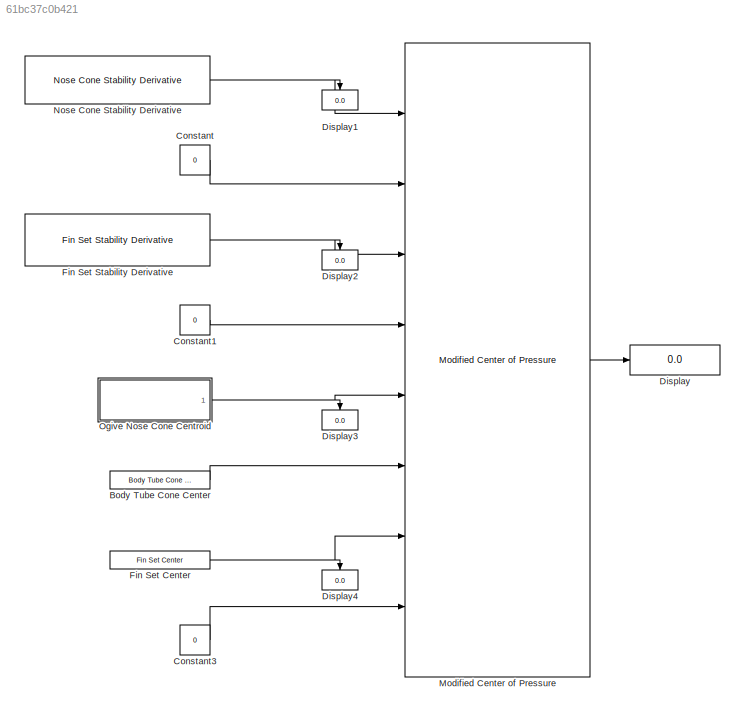
MODEL slx_61bc37c0b421
KIND model
CONFIG InitFcn = fin_center_distance=1.7;\nfin_root_chord=1.6;\nfin_tip_chord=0.85;\nd_nose_tip_to_fins=11.2;\nfins_count=4;\nheight_fins=1.65;\ndiameter_outer=0.75;\nheight_nose_cone=3.6;\nfin_sweep_length=0.75;\n
BLOCK [Reference] Body Tube Cone Center  REF=rocket_angular_flight_library/Center of Pressure/Body Tube Cone Center
  Ports = [0, 1]
  SourceBlock = rocket_angular_flight_library/Center of Pressure/Body Tube Cone Center
  SourceType = SubSystem
BLOCK [Constant] Constant
  Value = 0
BLOCK [Constant] Constant1
  Value = 0
BLOCK [Constant] Constant3
  Value = 0
BLOCK [Display] Display
  Decimation = 1
  Ports = [1]
BLOCK [Display] Display1
  Decimation = 1
  Ports = [1]
BLOCK [Display] Display2
  Decimation = 1
  Ports = [1]
BLOCK [Display] Display3
  Decimation = 1
  Ports = [1]
BLOCK [Display] Display4
  Decimation = 1
  Ports = [1]
BLOCK [Reference] Fin Set Center  REF=rocket_angular_flight_library/Center of Pressure/Fin Set Center
  Ports = [0, 1]
  SourceBlock = rocket_angular_flight_library/Center of Pressure/Fin Set Center
  SourceType = SubSystem
BLOCK [Reference] Fin Set Stability Derivative  REF=rocket_angular_flight_library/Rocket Stability Derivative/Fin Set Stability Derivative
  Ports = [0, 1]
  SourceBlock = rocket_angular_flight_library/Rocket Stability Derivative/Fin Set Stability Derivative
  SourceType = SubSystem
BLOCK [Reference] Modified Center of Pressure  REF=rocket_angular_flight_library/Center of Pressure/Modified Center of Pressure
  Ports = [8, 1]
  SourceBlock = rocket_angular_flight_library/Center of Pressure/Modified Center of Pressure
  SourceType = SubSystem
BLOCK [Reference] Nose Cone Stability Derivative  REF=rocket_angular_flight_library/Rocket Stability Derivative/Nose Cone Stability Derivative
  Ports = [0, 1]
  SourceBlock = rocket_angular_flight_library/Rocket Stability Derivative/Nose Cone Stability Derivative
  SourceType = SubSystem
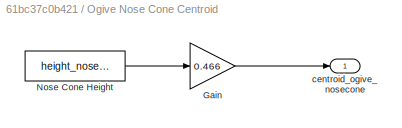
BLOCK [SubSystem] Ogive Nose Cone Centroid
  Ports = [0, 1]
  RequestExecContextInheritance = off
BLOCK [Gain] Ogive Nose Cone Centroid/Gain
  Gain = 0.466
  OutDataTypeStr = Inherit: Inherit via internal rule
  ParamDataTypeStr = Inherit: Inherit via internal rule
  SaturateOnIntegerOverflow = off
BLOCK [Constant] Ogive Nose Cone Centroid/Nose Cone Height
  Value = height_nose_cone
BLOCK [Outport] Ogive Nose Cone Centroid/centroid_ogive_nosecone
  IconDisplay = Port number
LINE Body Tube Cone Center:1 -> Modified Center of Pressure:6
LINE Constant1:1 -> Modified Center of Pressure:4
LINE Constant3:1 -> Modified Center of Pressure:8
LINE Constant:1 -> Modified Center of Pressure:2
NET Fin Set Center:1 -> Display4:1, Modified Center of Pressure:7
NET Fin Set Stability Derivative:1 -> Display2:1, Modified Center of Pressure:3
LINE Modified Center of Pressure:1 -> Display:1
NET Nose Cone Stability Derivative:1 -> Display1:1, Modified Center of Pressure:1
LINE Ogive Nose Cone Centroid/Gain:1 -> Ogive Nose Cone Centroid/centroid_ogive_nosecone:1
LINE Ogive Nose Cone Centroid/Nose Cone Height:1 -> Ogive Nose Cone Centroid/Gain:1
NET Ogive Nose Cone Centroid:1 -> Display3:1, Modified Center of Pressure:5
note: NET lines group one-source signal fan-out (src -> all destinations, sorted); 1:1 wires keep LINE
